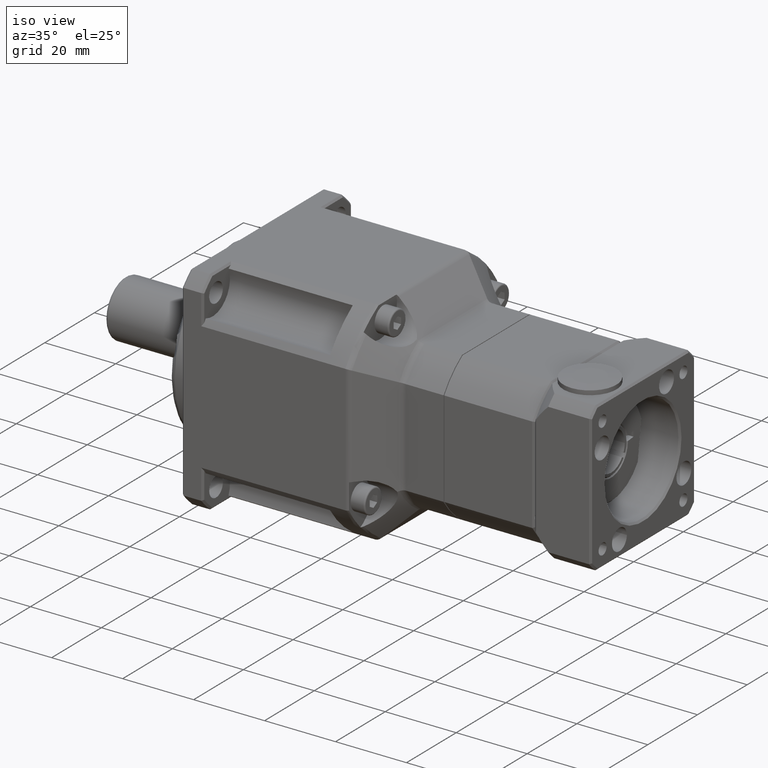
[diagram: clean part render]
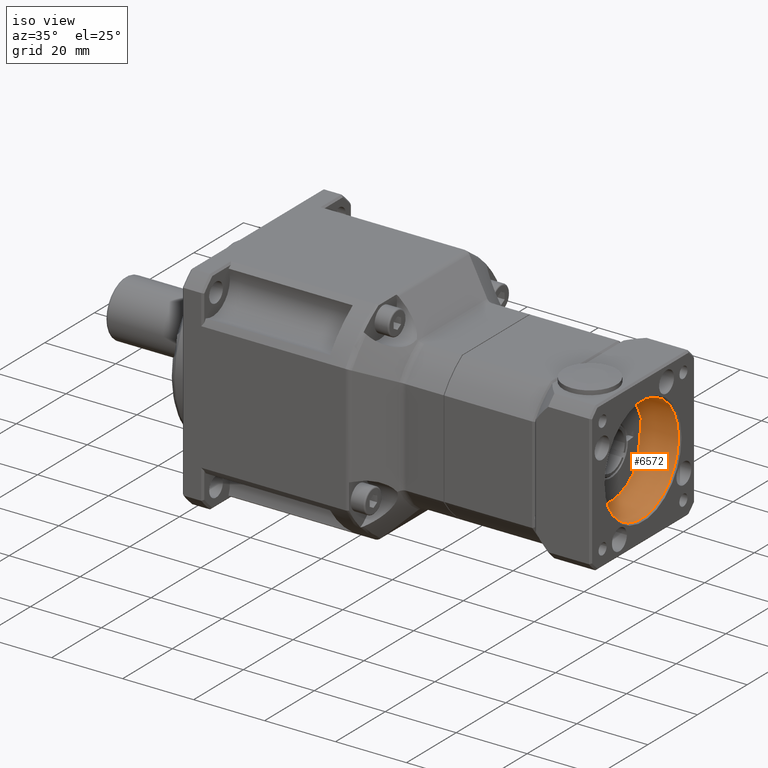
[diagram: same view with one face highlighted and labeled with its STEP entity id]
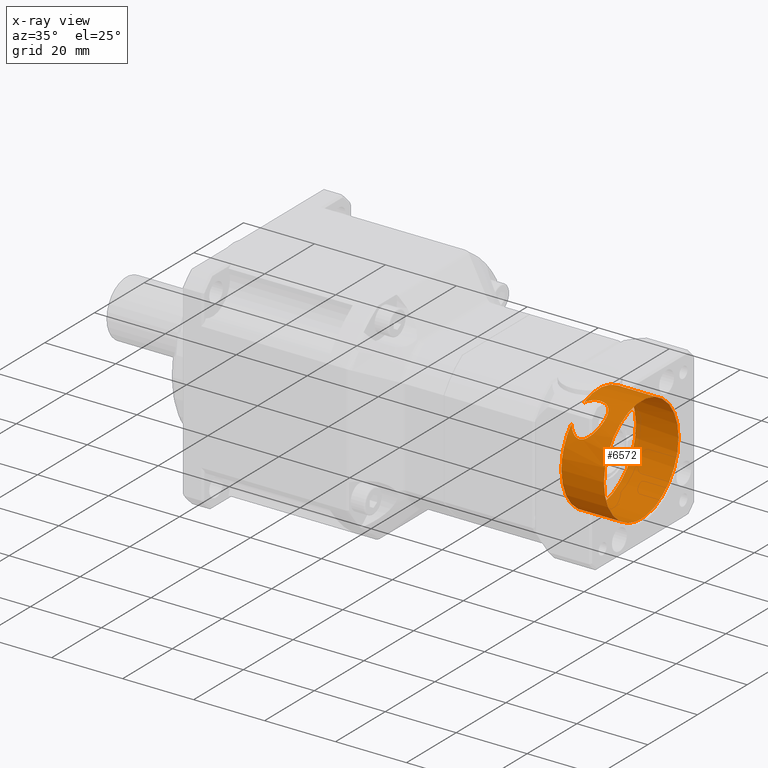
[diagram: x-ray of the same camera — body ghosted, the highlighted face saturated]
A machine part, iso view. The second image highlights one B-rep face of the part: STEP entity #6572.
The next image is the same camera in x-ray: the body ghosted, the highlighted face saturated — about 0% of this face is hidden behind the body in this view.
In plain terms, the highlighted cylindrical surface (bore or boss wall) has radius 15 mm, axis along (-1, 0, -0).
Its self-contained STEP definition (entity closure, byte-faithful):
#68=B_SPLINE_CURVE_WITH_KNOTS('',3,(#10601,#10602,#10603,#10604,#10605,
#10606,#10607,#10608,#10609,#10610,#10611,#10612,#10613,#10614,#10615,#10616,
#10617,#10618,#10619,#10620,#10621,#10622,#10623,#10624,#10625,#10626,#10627,
#10628,#10629,#10630,#10631,#10632,#10633,#10634,#10635),.UNSPECIFIED.,
 .F.,.F.,(4,2,2,2,3,2,2,2,2,2,2,2,2,2,2,2,4),(-0.473436031061411,-0.338963340215391,
-0.169481670107695,-0.0847408350538479,0.,0.0847408350538478,0.169481670107696,
0.338963340215391,0.562674307084904,0.786385273954417,0.968597147833243,
1.15080902171207,1.30917695804081,1.46754489436956,1.6259128306983,1.78428076702704,
1.87138678774237),.UNSPECIFIED.);
#1305=CYLINDRICAL_SURFACE('',#7198,15.);
#1461=FACE_BOUND('',#2268,.T.);
#1754=FACE_OUTER_BOUND('',#2267,.T.);
#2267=EDGE_LOOP('',(#5196,#5197));
#2268=EDGE_LOOP('',(#5198));
#2799=CIRCLE('',#7197,15.);
#2800=CIRCLE('',#7199,15.);
#3244=VERTEX_POINT('',#10596);
#3245=VERTEX_POINT('',#10599);
#3246=VERTEX_POINT('',#10600);
#3972=EDGE_CURVE('',#3244,#3244,#2799,.T.);
#3973=EDGE_CURVE('',#3245,#3246,#68,.T.);
#3974=EDGE_CURVE('',#3246,#3245,#2800,.T.);
#5196=ORIENTED_EDGE('',*,*,#3973,.T.);
#5197=ORIENTED_EDGE('',*,*,#3974,.T.);
#5198=ORIENTED_EDGE('',*,*,#3972,.F.);
#6572=ADVANCED_FACE('',(#1754,#1461),#1305,.F.);
#7197=AXIS2_PLACEMENT_3D('',#10597,#8476,#8477);
#7198=AXIS2_PLACEMENT_3D('',#10598,#8478,#8479);
#7199=AXIS2_PLACEMENT_3D('',#10636,#8480,#8481);
#8476=DIRECTION('center_axis',(-1.,1.01318433854293E-30,-2.31276918266198E-15));
#8477=DIRECTION('ref_axis',(-4.05800261599586E-30,1.,2.19269047363468E-15));
#8478=DIRECTION('center_axis',(-1.,1.01318433854293E-30,-2.31276918266198E-15));
#8479=DIRECTION('ref_axis',(4.05800261599586E-30,-1.,-2.19269047363468E-15));
#8480=DIRECTION('center_axis',(-1.,1.01318433854293E-30,-2.31276918266198E-15));
#8481=DIRECTION('ref_axis',(2.31276918266198E-15,2.19269047363468E-15,-1.));
#10596=CARTESIAN_POINT('',(69.6218498129889,-65.6853481373327,12.5410286731231));
#10597=CARTESIAN_POINT('Origin',(69.6218498129889,-50.6853481373327,12.5410286731231));
#10598=CARTESIAN_POINT('Origin',(63.8718498129889,-50.6853481373327,12.5410286731231));
#10599=CARTESIAN_POINT('',(57.6218498129889,-61.596260827581,22.8343266997897));
#10600=CARTESIAN_POINT('',(57.6218498129889,-56.7744354470845,26.2495302591543));
#10601=CARTESIAN_POINT('Ctrl Pts',(57.6218498129889,-61.596260827581,22.8343266997897));
#10602=CARTESIAN_POINT('Ctrl Pts',(57.8253175569008,-61.8916415382024,22.5212226649485));
#10603=CARTESIAN_POINT('Ctrl Pts',(58.0633284322926,-62.1565502599728,22.21286342338));
#10604=CARTESIAN_POINT('Ctrl Pts',(58.6529945535549,-62.6721834348235,21.5702496630976));
#10605=CARTESIAN_POINT('Ctrl Pts',(59.0666770671747,-62.9404917217621,21.1971114102963));
#10606=CARTESIAN_POINT('Ctrl Pts',(59.7799190424596,-63.2260542624655,20.7726608512765));
#10607=CARTESIAN_POINT('Ctrl Pts',(60.0332693050475,-63.3024309577349,20.6539056972218));
#10608=CARTESIAN_POINT('Ctrl Pts',(60.562950977297,-63.4070788903535,20.4888031517287));
#10609=CARTESIAN_POINT('Ctrl Pts',(60.8393803628094,-63.4353481373328,20.4427689877626));
#10610=CARTESIAN_POINT('Ctrl Pts',(61.1218498129889,-63.4353481373328,20.4427689877626));
#10611=CARTESIAN_POINT('Ctrl Pts',(61.4043192631684,-63.4353481373328,20.4427689877626));
#10612=CARTESIAN_POINT('Ctrl Pts',(61.6807486486808,-63.4070788903535,20.4888031517287));
#10613=CARTESIAN_POINT('Ctrl Pts',(62.2104303209303,-63.3024309577349,20.6539056972218));
#10614=CARTESIAN_POINT('Ctrl Pts',(62.4637805835182,-63.2260542624655,20.7726608512765));
#10615=CARTESIAN_POINT('Ctrl Pts',(63.1770225588032,-62.9404917217621,21.1971114102963));
#10616=CARTESIAN_POINT('Ctrl Pts',(63.5907050724229,-62.6721834348235,21.5702496630976));
#10617=CARTESIAN_POINT('Ctrl Pts',(64.3534918816918,-62.0051649814731,22.4015290636315));
#10618=CARTESIAN_POINT('Ctrl Pts',(64.723359068047,-61.522088417595,22.9399787478507));
#10619=CARTESIAN_POINT('Ctrl Pts',(65.2336330644204,-60.4200387620907,23.9782007477147));
#10620=CARTESIAN_POINT('Ctrl Pts',(65.3718498129889,-59.7997681748457,24.477670607789));
#10621=CARTESIAN_POINT('Ctrl Pts',(65.3718498129889,-58.6849049630416,25.2444137514247));
#10622=CARTESIAN_POINT('Ctrl Pts',(65.2775394140476,-58.1224467229885,25.5815953321188));
#10623=CARTESIAN_POINT('Ctrl Pts',(64.8402467628539,-57.0468809398851,26.1387384563517));
#10624=CARTESIAN_POINT('Ctrl Pts',(64.4957133914131,-56.5351970792295,26.3602279361652));
#10625=CARTESIAN_POINT('Ctrl Pts',(63.707341109053,-55.7739832197496,26.6566255956591));
#10626=CARTESIAN_POINT('Ctrl Pts',(63.2405007540003,-55.459433406146,26.7627223008263));
#10627=CARTESIAN_POINT('Ctrl Pts',(62.21161394862,-55.0400448753511,26.8966921498089));
#10628=CARTESIAN_POINT('Ctrl Pts',(61.6497429340847,-54.9353481373328,26.9263510539389));
#10629=CARTESIAN_POINT('Ctrl Pts',(60.5939566918931,-54.9353481373328,26.9263510539389));
#10630=CARTESIAN_POINT('Ctrl Pts',(60.0320856773578,-55.0400448753511,26.8966921498089));
#10631=CARTESIAN_POINT('Ctrl Pts',(59.0031988719775,-55.459433406146,26.7627223008263));
#10632=CARTESIAN_POINT('Ctrl Pts',(58.5363585169248,-55.7739832197496,26.6566255956591));
#10633=CARTESIAN_POINT('Ctrl Pts',(57.9681367434237,-56.3226304755263,26.4429960611009));
#10634=CARTESIAN_POINT('Ctrl Pts',(57.782926513633,-56.5405951862842,26.3533981950926));
#10635=CARTESIAN_POINT('Ctrl Pts',(57.6218498129889,-56.7744354470845,26.2495302591543));
#10636=CARTESIAN_POINT('Origin',(57.6218498129889,-50.6853481373327,12.5410286731231));